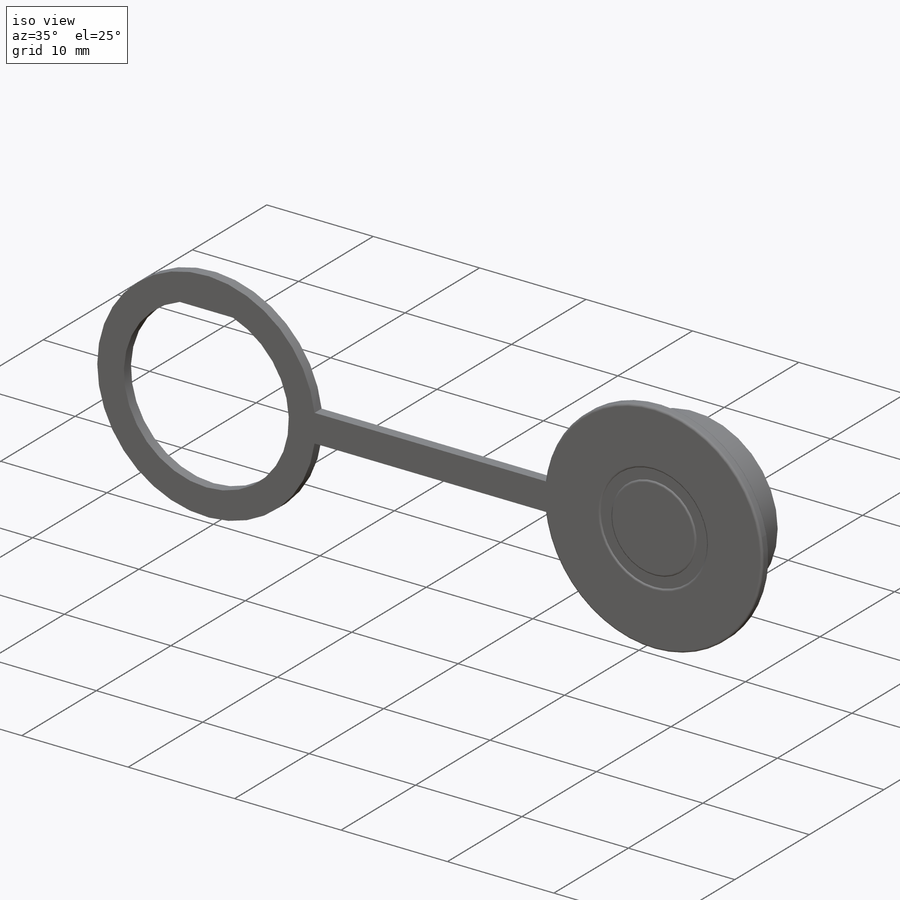
[diagram: iso view]
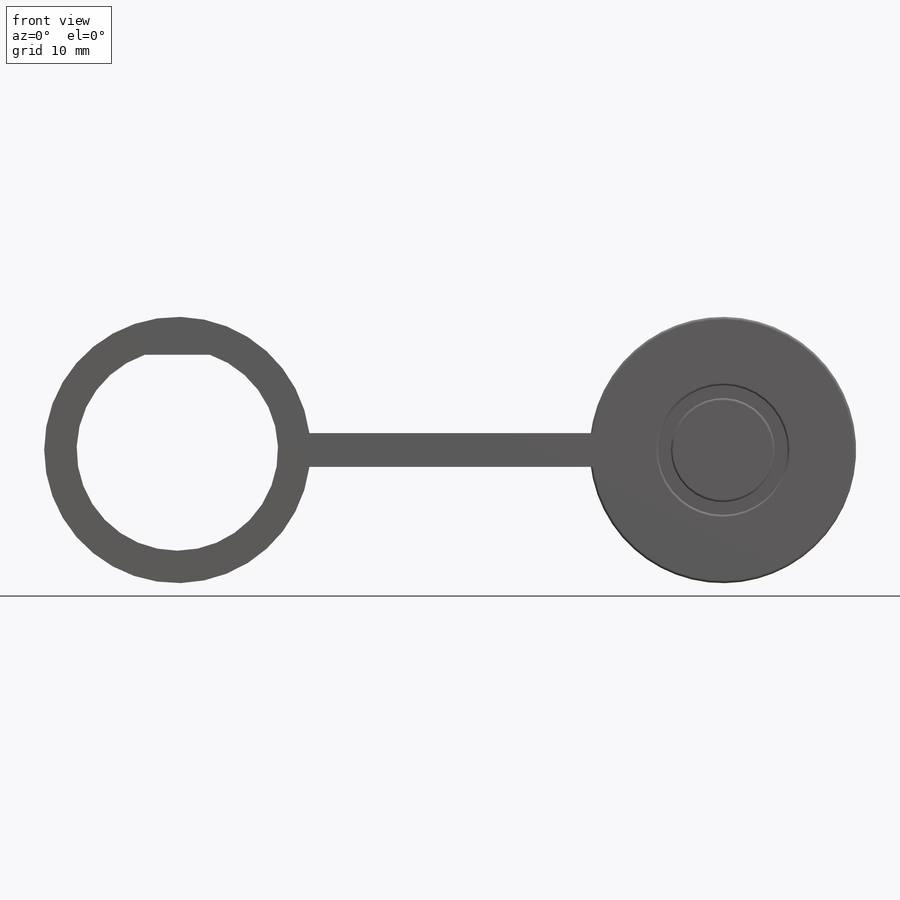
[diagram: front view]
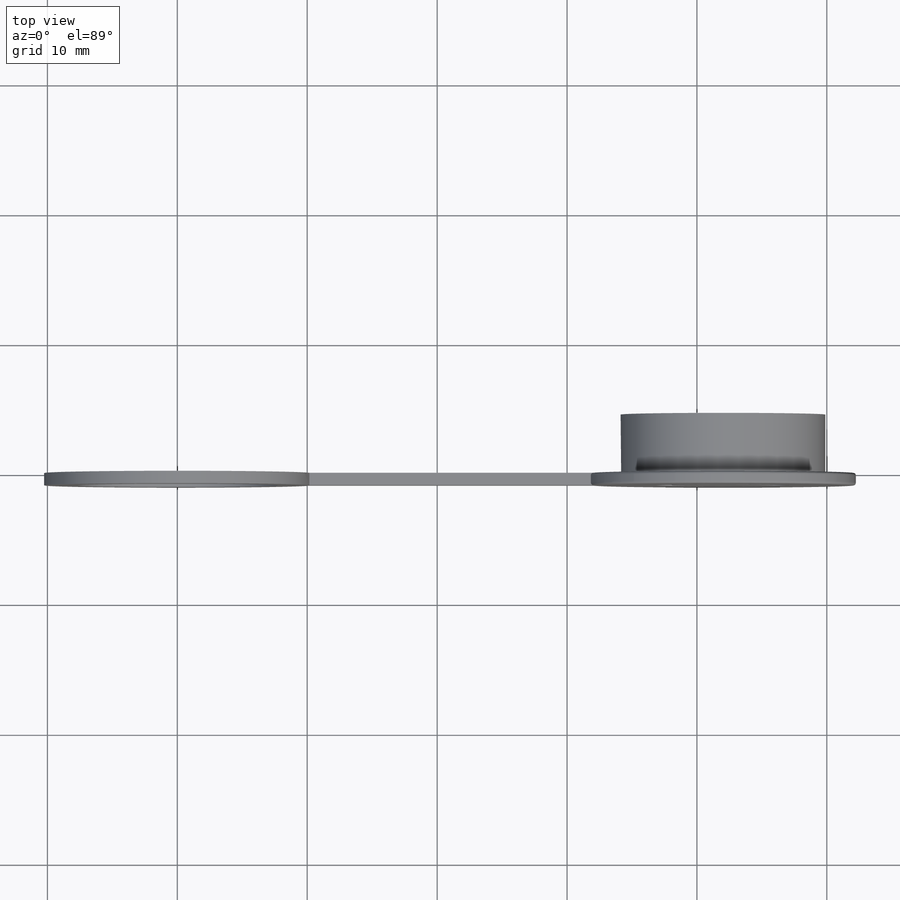
[diagram: top view]
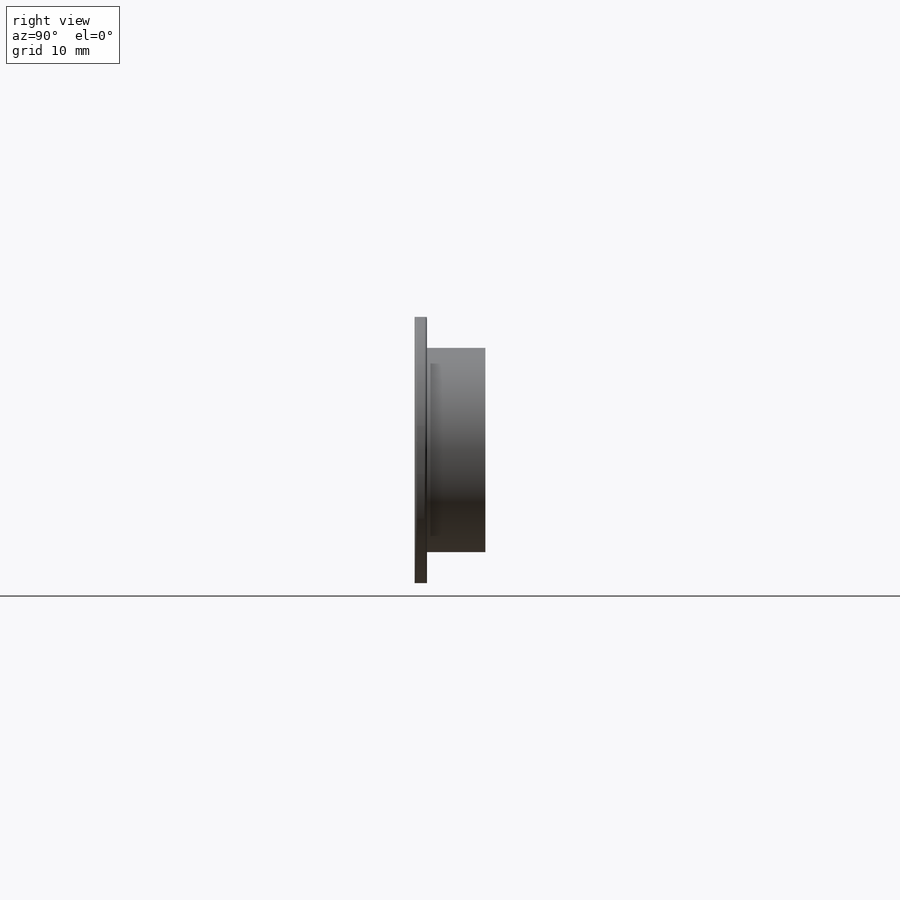
[diagram: right view]
SOLIDWORKS PART (.sldprt)
format: sldprt  version: not decoded by parser v0  size: 219,136 bytes
history: native  units: mm
features: sketch x4, plane x3, extrude x3, material x1, cut_extrude x1, fillet x1 (+13 scaffold rows collapsed)
feature tree (26):
  scaffold x13  (default folders/planes/origin — collapsed)
  material  "Материал <не указан>"
  plane  "Спереди"
  plane  "Сверху"
  plane  "Справа"
  sketch  "Эскиз1"  dims[D1=20.5mm D3=15.5mm D2=42.0mm D4=1.3mm D5=5.0mm]
  extrude  "Бобышка-Вытянуть1"  Depth=0.95mm
  sketch  "Эскиз2"  dims[D1=15.75mm D2=0.5mm]
  extrude  "Бобышка-Вытянуть2"  Depth=4.5mm
  sketch  "Эскиз3"  dims[D1=10.0mm D3=0.6mm D2=0.5mm]
  extrude  "Бобышка-Вытянуть3"  [1 undecoded]
  sketch  "Эскиз4"  dims[D1=10.0mm D2=1.0mm]
  cut_extrude  "Вырез-Вытянуть1"  Depth=0.1mm
  fillet  "Скругление1"  Radius=0.2mm
decode coverage: 8 of 9 modeling features carry decoded parameters
note: 1 parameter value undecoded
note: suppression state not decoded; provenance and decode notes live in map.json
